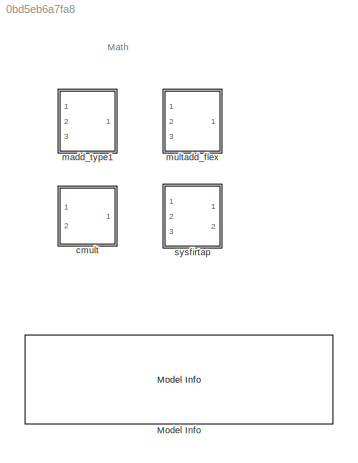
MODEL slx_0bd5eb6a7fa8
KIND library
CONFIG AbsTol = auto
CONFIG EnableMultiTasking = on
CONFIG FixedStep = auto
CONFIG MaxStep = auto
CONFIG MinStep = auto
CONFIG RelTol = 1e-3
CONFIG SampleTimeConstraint = Unconstrained
CONFIG SolverName = ode45
CONFIG StartTime = 0.0
CONFIG StopTime = 10.0
BLOCK [Reference] Model Info  REF=simulink/Model-Wide
Utilities/Model Info
  Ports = []
  SourceBlock = simulink/Model-Wide\nUtilities/Model Info
  SourceProductBaseCode = SL
  SourceType = CMBlock
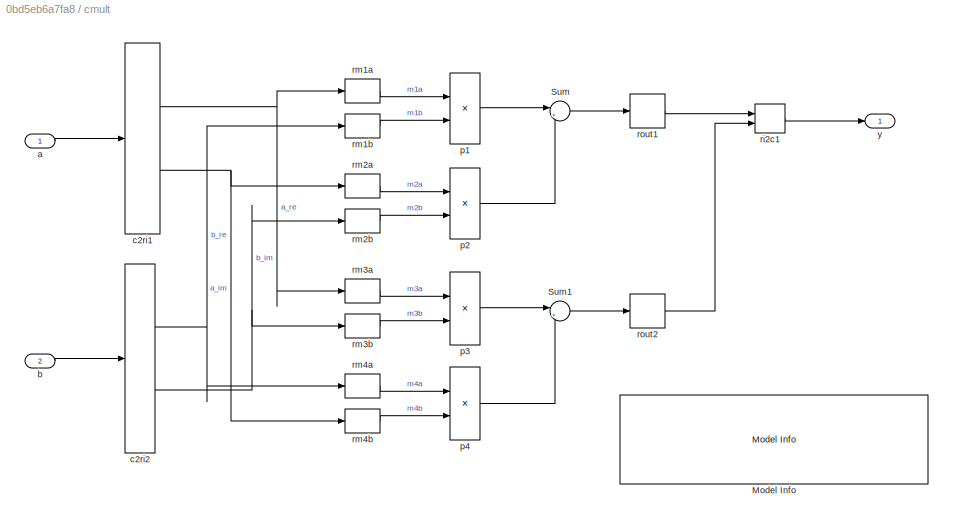
BLOCK [SubSystem] cmult
  Ports = [2, 1]
  RequestExecContextInheritance = off
BLOCK [Reference] cmult/Model Info  REF=simulink/Model-Wide
Utilities/Model Info
  Ports = []
  SourceBlock = simulink/Model-Wide\nUtilities/Model Info
  SourceProductBaseCode = SL
  SourceType = CMBlock
BLOCK [Sum] cmult/Sum
  Inputs = |+-
  Ports = [2, 1]
BLOCK [Sum] cmult/Sum1
  Inputs = |++
  Ports = [2, 1]
BLOCK [Inport] cmult/a
BLOCK [Inport] cmult/b
  Port = 2
BLOCK [ComplexToRealImag] cmult/c2ri1
  Ports = [1, 2]
BLOCK [ComplexToRealImag] cmult/c2ri2
  Ports = [1, 2]
BLOCK [Product] cmult/p1
  Ports = [2, 1]
BLOCK [Product] cmult/p2
  Ports = [2, 1]
BLOCK [Product] cmult/p3
  Ports = [2, 1]
BLOCK [Product] cmult/p4
  Ports = [2, 1]
BLOCK [RealImagToComplex] cmult/ri2c1
  Ports = [2, 1]
BLOCK [Delay] cmult/rm1a
  DelayLength = Nd_in
  InitialCondition = 0
  InputPortMap = u0
  NameLocation = top
  Ports = [1, 1]
BLOCK [Delay] cmult/rm1b
  DelayLength = Nd_in
  InitialCondition = 0
  InputPortMap = u0
  Ports = [1, 1]
BLOCK [Delay] cmult/rm2a
  DelayLength = Nd_in
  InitialCondition = 0
  InputPortMap = u0
  NameLocation = top
  Ports = [1, 1]
BLOCK [Delay] cmult/rm2b
  DelayLength = Nd_in
  InitialCondition = 0
  InputPortMap = u0
  Ports = [1, 1]
BLOCK [Delay] cmult/rm3a
  DelayLength = Nd_in
  InitialCondition = 0
  InputPortMap = u0
  NameLocation = top
  Ports = [1, 1]
BLOCK [Delay] cmult/rm3b
  DelayLength = Nd_in
  InitialCondition = 0
  InputPortMap = u0
  Ports = [1, 1]
BLOCK [Delay] cmult/rm4a
  DelayLength = Nd_in
  InitialCondition = 0
  InputPortMap = u0
  NameLocation = top
  Ports = [1, 1]
BLOCK [Delay] cmult/rm4b
  DelayLength = Nd_in
  InitialCondition = 0
  InputPortMap = u0
  Ports = [1, 1]
BLOCK [Delay] cmult/rout1
  DelayLength = Nd_out
  InitialCondition = 0
  InputPortMap = u0
  Ports = [1, 1]
BLOCK [Delay] cmult/rout2
  DelayLength = Nd_out
  InitialCondition = 0
  InputPortMap = u0
  Ports = [1, 1]
BLOCK [Outport] cmult/y
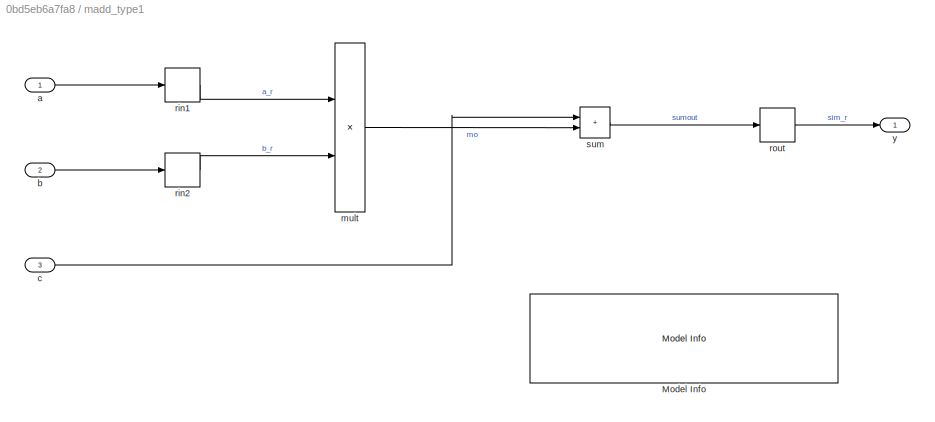
BLOCK [SubSystem] madd_type1
  Ports = [3, 1]
  RequestExecContextInheritance = off
  TreatAsAtomicUnit = on
BLOCK [Reference] madd_type1/Model Info  REF=simulink/Model-Wide
Utilities/Model Info
  Ports = []
  SourceBlock = simulink/Model-Wide\nUtilities/Model Info
  SourceProductBaseCode = SL
  SourceType = CMBlock
BLOCK [Inport] madd_type1/a
BLOCK [Inport] madd_type1/b
  Port = 2
BLOCK [Inport] madd_type1/c
  Port = 3
BLOCK [Product] madd_type1/mult
  Ports = [2, 1]
BLOCK [Delay] madd_type1/rin1
  DelayLength = Nd_in
  InitialCondition = 0
  InputPortMap = u0
  Ports = [1, 1]
BLOCK [Delay] madd_type1/rin2
  DelayLength = Nd_in
  InitialCondition = 0
  InputPortMap = u0
  Ports = [1, 1]
BLOCK [Delay] madd_type1/rout
  DelayLength = Nd_out
  InitialCondition = 0
  InputPortMap = u0
  Ports = [1, 1]
BLOCK [Sum] madd_type1/sum
  AccumDataTypeStr = Inherit: Same as first input
  AttributesFormatString = %<AccumDataTypeStr>
  IconShape = rectangular
  OutDataTypeStr = Inherit: Same as accumulator
  Ports = [2, 1]
BLOCK [Outport] madd_type1/y
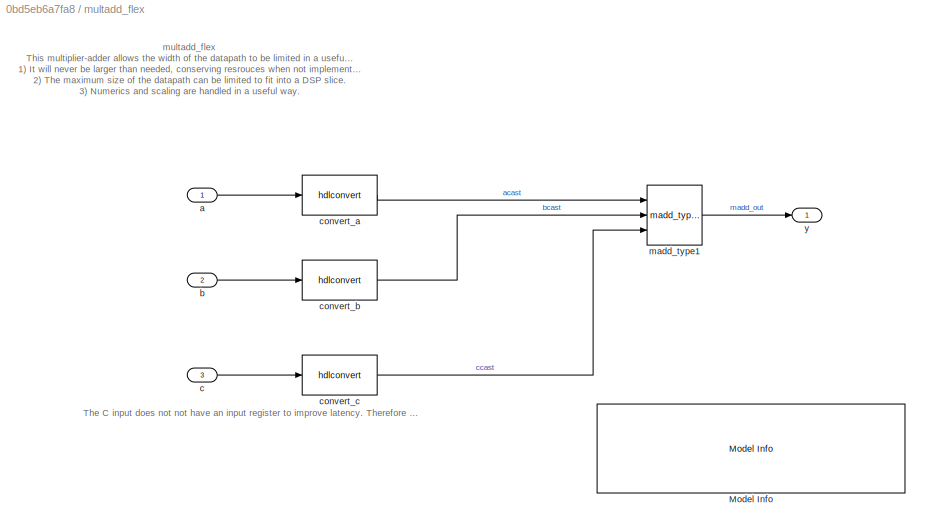
BLOCK [SubSystem] multadd_flex
  PermitHierarchicalResolution = ExplicitOnly
  Ports = [3, 1]
  RequestExecContextInheritance = off
  TreatAsAtomicUnit = on
BLOCK [Reference] multadd_flex/Model Info  REF=simulink/Model-Wide
Utilities/Model Info
  Ports = []
  SourceBlock = simulink/Model-Wide\nUtilities/Model Info
  SourceProductBaseCode = SL
  SourceType = CMBlock
BLOCK [Inport] multadd_flex/a
BLOCK [Inport] multadd_flex/b
  Port = 2
BLOCK [Inport] multadd_flex/c
  Port = 3
BLOCK [Reference] multadd_flex/convert_a  REF=lib_dsphdltypes_v1/hdlconvert  (lib defined in slx_567fb05dc9b5)
  Ports = [1, 1]
  SourceBlock = lib_dsphdltypes_v1/hdlconvert
  SourceProductName = DSPHDL Library
  SourceType = HDL Type Conversion
BLOCK [Reference] multadd_flex/convert_b  REF=lib_dsphdltypes_v1/hdlconvert  (lib defined in slx_567fb05dc9b5)
  Ports = [1, 1]
  SourceBlock = lib_dsphdltypes_v1/hdlconvert
  SourceProductName = DSPHDL Library
  SourceType = HDL Type Conversion
BLOCK [Reference] multadd_flex/convert_c  REF=lib_dsphdltypes_v1/hdlconvert  (lib defined in slx_567fb05dc9b5)
  Ports = [1, 1]
  SourceBlock = lib_dsphdltypes_v1/hdlconvert
  SourceProductName = DSPHDL Library
  SourceType = HDL Type Conversion
BLOCK [Reference] multadd_flex/madd_type1  REF=$bdroot/madd_type1
  Ports = [3, 1]
  SourceBlock = $bdroot/madd_type1
  SourceType = Multiply-Add (Type 1)
BLOCK [Outport] multadd_flex/y
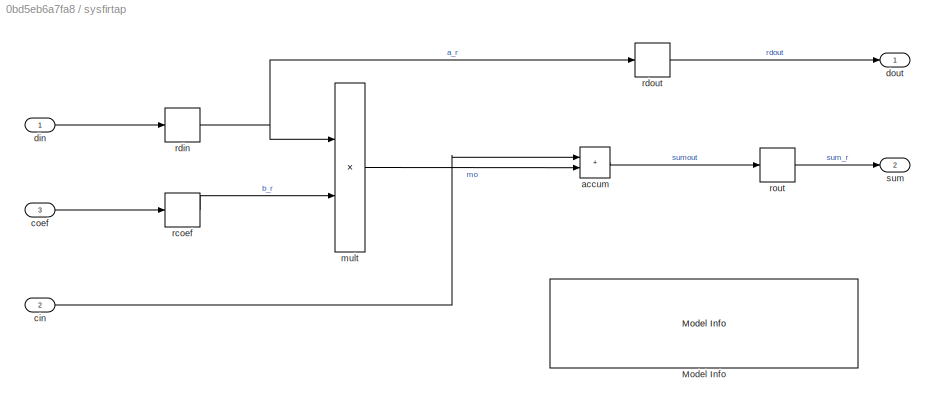
BLOCK [SubSystem] sysfirtap
  Ports = [3, 2]
  RequestExecContextInheritance = off
  TreatAsAtomicUnit = on
BLOCK [Reference] sysfirtap/Model Info  REF=simulink/Model-Wide
Utilities/Model Info
  Ports = []
  SourceBlock = simulink/Model-Wide\nUtilities/Model Info
  SourceProductBaseCode = SL
  SourceType = CMBlock
BLOCK [Sum] sysfirtap/accum
  AccumDataTypeStr = Inherit: Same as first input
  AttributesFormatString = %<AccumDataTypeStr>
  IconShape = rectangular
  OutDataTypeStr = Inherit: Same as accumulator
  Ports = [2, 1]
BLOCK [Inport] sysfirtap/cin
  Port = 2
BLOCK [Inport] sysfirtap/coef
  Port = 3
BLOCK [Inport] sysfirtap/din
BLOCK [Outport] sysfirtap/dout
BLOCK [Product] sysfirtap/mult
  Ports = [2, 1]
BLOCK [Delay] sysfirtap/rcoef
  DelayLength = 1
  InitialCondition = 0
  InputPortMap = u0
  Ports = [1, 1]
BLOCK [Delay] sysfirtap/rdin
  DelayLength = 1
  InitialCondition = 0
  InputPortMap = u0
  Ports = [1, 1]
BLOCK [Delay] sysfirtap/rdout
  DelayLength = 1
  InitialCondition = 0
  InputPortMap = u0
  Ports = [1, 1]
BLOCK [Delay] sysfirtap/rout
  DelayLength = 1
  InitialCondition = 0
  InputPortMap = u0
  Ports = [1, 1]
BLOCK [Outport] sysfirtap/sum
  Port = 2
ANNOTATION (root): Math
ANNOTATION multadd_flex: multadd_flex This multiplier-adder allows the width of the datapath to be limited in a useful way: 1) It will never be larger than needed, conserving resrouces when not implemented in a DSP slice. 2) The maximum size of the datapath can be limited to fit into a DSP slice. 3) Numerics and scaling are handled in a useful way.
ANNOTATION multadd_flex: The C input does not not have an input register to improve latency. Therefore rounding or saturation should not be selected to map to DSP slice. If an input register is needed, another block should be used (or copy and change this block)
LINE cmult/Sum1:1 -> cmult/rout2:1
LINE cmult/Sum:1 -> cmult/rout1:1
LINE cmult/a:1 -> cmult/c2ri1:1
LINE cmult/b:1 -> cmult/c2ri2:1
NET cmult/c2ri1:1 -> cmult/rm1a:1, cmult/rm3a:1
NET cmult/c2ri1:2 -> cmult/rm2a:1, cmult/rm4b:1
NET cmult/c2ri2:1 -> cmult/rm1b:1, cmult/rm4a:1
NET cmult/c2ri2:2 -> cmult/rm2b:1, cmult/rm3b:1
LINE cmult/p1:1 -> cmult/Sum:1
LINE cmult/p2:1 -> cmult/Sum:2
LINE cmult/p3:1 -> cmult/Sum1:1
LINE cmult/p4:1 -> cmult/Sum1:2
LINE cmult/ri2c1:1 -> cmult/y:1
LINE cmult/rm1a:1 -> cmult/p1:1
LINE cmult/rm1b:1 -> cmult/p1:2
LINE cmult/rm2a:1 -> cmult/p2:1
LINE cmult/rm2b:1 -> cmult/p2:2
LINE cmult/rm3a:1 -> cmult/p3:1
LINE cmult/rm3b:1 -> cmult/p3:2
LINE cmult/rm4a:1 -> cmult/p4:1
LINE cmult/rm4b:1 -> cmult/p4:2
LINE cmult/rout1:1 -> cmult/ri2c1:1
LINE cmult/rout2:1 -> cmult/ri2c1:2
note: NET lines group one-source signal fan-out (src -> all destinations, sorted); 1:1 wires keep LINE
